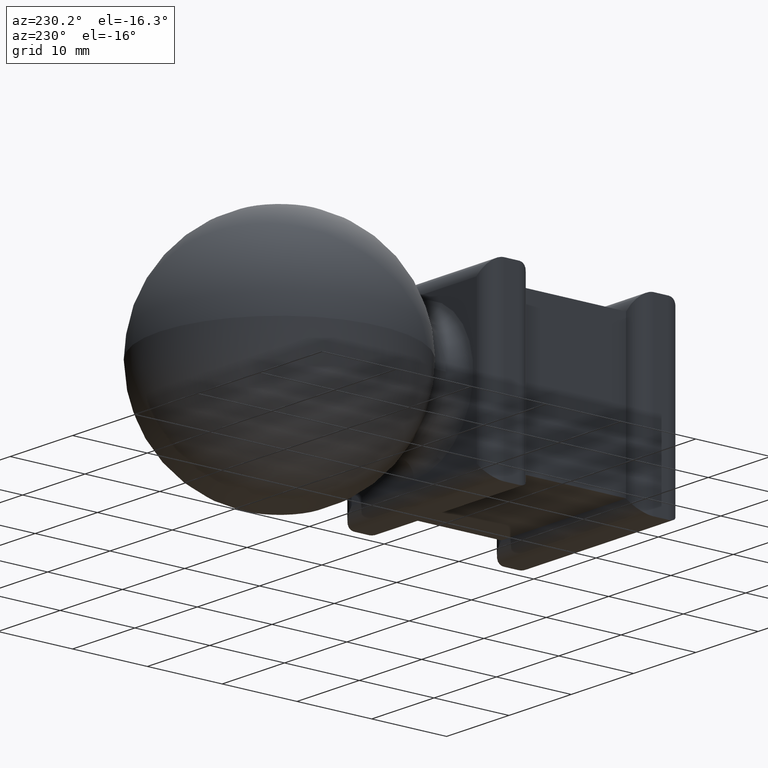
[diagram: clean part render]
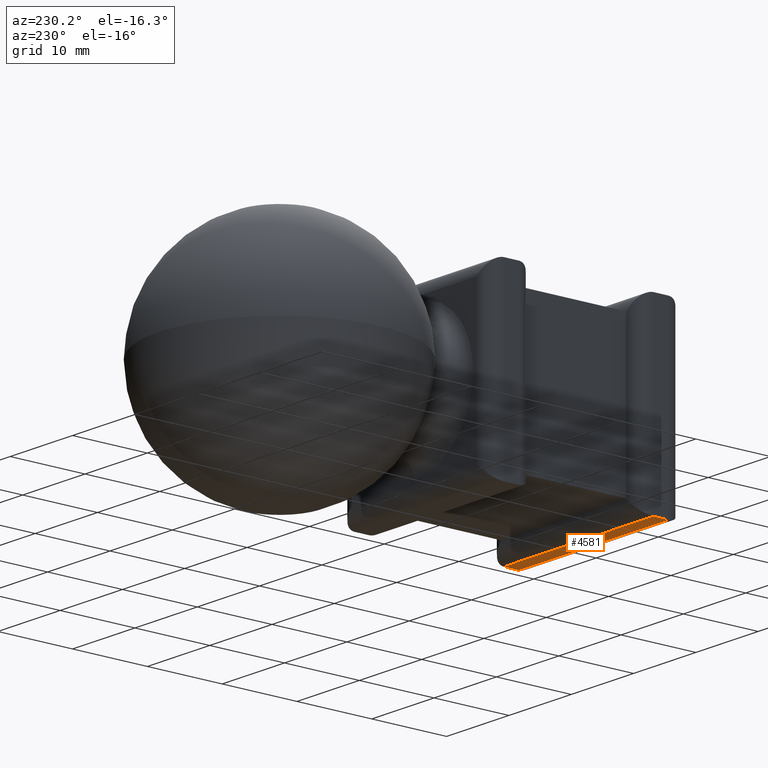
[diagram: same view with one face highlighted and labeled with its STEP entity id]
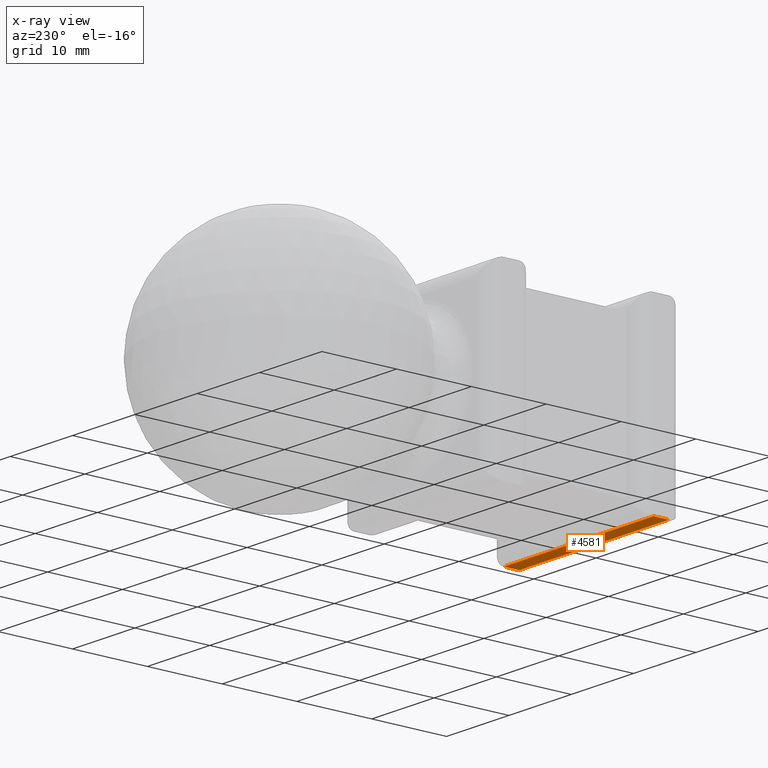
[diagram: x-ray of the same camera — body ghosted, the highlighted face saturated]
A machine part, auxiliary view. The second image highlights one B-rep face of the part: STEP entity #4581.
The next image is the same camera in x-ray: the body ghosted, the highlighted face saturated — about 0% of this face is hidden behind the body in this view.
In plain terms, the highlighted planar face has unit normal (0, 0, 1).
Its self-contained STEP definition (entity closure, byte-faithful):
#108 = CARTESIAN_POINT ( 'NONE',  ( -11.99999999999999800, 6.000000000000000000, -12.00000000000000000 ) ) ;
#499 = CARTESIAN_POINT ( 'NONE',  ( 12.00000000000000200, 4.000000000000000000, -12.00000000000000000 ) ) ;
#712 = ORIENTED_EDGE ( 'NONE', *, *, #3717, .T. ) ;
#960 = FACE_OUTER_BOUND ( 'NONE', #4557, .T. ) ;
#1932 = LINE ( 'NONE', #6934, #5475 ) ;
#1964 = LINE ( 'NONE', #3178, #2098 ) ;
#2009 = AXIS2_PLACEMENT_3D ( 'NONE', #108, #6357, #7959 ) ;
#2014 = VECTOR ( 'NONE', #3238, 1000.000000000000000 ) ;
#2098 = VECTOR ( 'NONE', #10105, 1000.000000000000000 ) ;
#2677 = DIRECTION ( 'NONE',  ( -0.0000000000000000000, -1.000000000000000000, -0.0000000000000000000 ) ) ;
#3176 = ORIENTED_EDGE ( 'NONE', *, *, #5605, .T. ) ;
#3178 = CARTESIAN_POINT ( 'NONE',  ( -11.99999999999999800, 2.000000000000000000, -12.00000000000000000 ) ) ;
#3238 = DIRECTION ( 'NONE',  ( 1.000000000000000000, -0.0000000000000000000, -0.0000000000000000000 ) ) ;
#3516 = LINE ( 'NONE', #8459, #2014 ) ;
#3517 = CARTESIAN_POINT ( 'NONE',  ( 12.00000000000000200, 6.000000000000000000, -12.00000000000000000 ) ) ;
#3717 = EDGE_CURVE ( 'NONE', #4892, #9832, #3516, .T. ) ;
#3891 = ORIENTED_EDGE ( 'NONE', *, *, #8347, .T. ) ;
#4284 = VERTEX_POINT ( 'NONE', #6966 ) ;
#4335 = VECTOR ( 'NONE', #2677, 1000.000000000000000 ) ;
#4347 = VERTEX_POINT ( 'NONE', #8831 ) ;
#4557 = EDGE_LOOP ( 'NONE', ( #3176, #3891, #9309, #712 ) ) ;
#4581 = ADVANCED_FACE ( 'NONE', ( #960 ), #7886, .F. ) ;
#4892 = VERTEX_POINT ( 'NONE', #10279 ) ;
#5475 = VECTOR ( 'NONE', #7088, 1000.000000000000000 ) ;
#5605 = EDGE_CURVE ( 'NONE', #9832, #4284, #8532, .T. ) ;
#6357 = DIRECTION ( 'NONE',  ( 0.0000000000000000000, 0.0000000000000000000, 1.000000000000000000 ) ) ;
#6934 = CARTESIAN_POINT ( 'NONE',  ( -11.99999999999999800, 6.000000000000000000, -12.00000000000000000 ) ) ;
#6966 = CARTESIAN_POINT ( 'NONE',  ( 12.00000000000000200, 2.000000000000000000, -12.00000000000000000 ) ) ;
#7088 = DIRECTION ( 'NONE',  ( -0.0000000000000000000, -1.000000000000000000, -0.0000000000000000000 ) ) ;
#7886 = PLANE ( 'NONE',  #2009 ) ;
#7959 = DIRECTION ( 'NONE',  ( 1.000000000000000000, 0.0000000000000000000, -0.0000000000000000000 ) ) ;
#8347 = EDGE_CURVE ( 'NONE', #4284, #4347, #1964, .T. ) ;
#8459 = CARTESIAN_POINT ( 'NONE',  ( 12.00000000000000200, 4.000000000000000000, -12.00000000000000000 ) ) ;
#8532 = LINE ( 'NONE', #3517, #4335 ) ;
#8831 = CARTESIAN_POINT ( 'NONE',  ( -11.99999999999999800, 2.000000000000000000, -12.00000000000000000 ) ) ;
#9309 = ORIENTED_EDGE ( 'NONE', *, *, #11206, .F. ) ;
#9832 = VERTEX_POINT ( 'NONE', #499 ) ;
#10105 = DIRECTION ( 'NONE',  ( -1.000000000000000000, 0.0000000000000000000, 0.0000000000000000000 ) ) ;
#10279 = CARTESIAN_POINT ( 'NONE',  ( -11.99999999999999800, 4.000000000000000000, -12.00000000000000000 ) ) ;
#11206 = EDGE_CURVE ( 'NONE', #4892, #4347, #1932, .T. ) ;